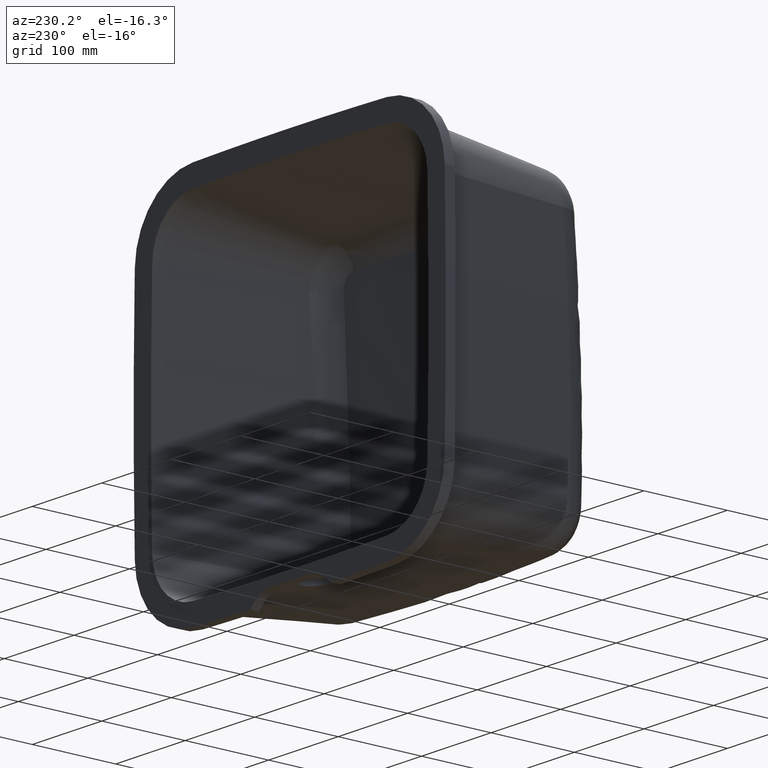
[diagram: clean part render]
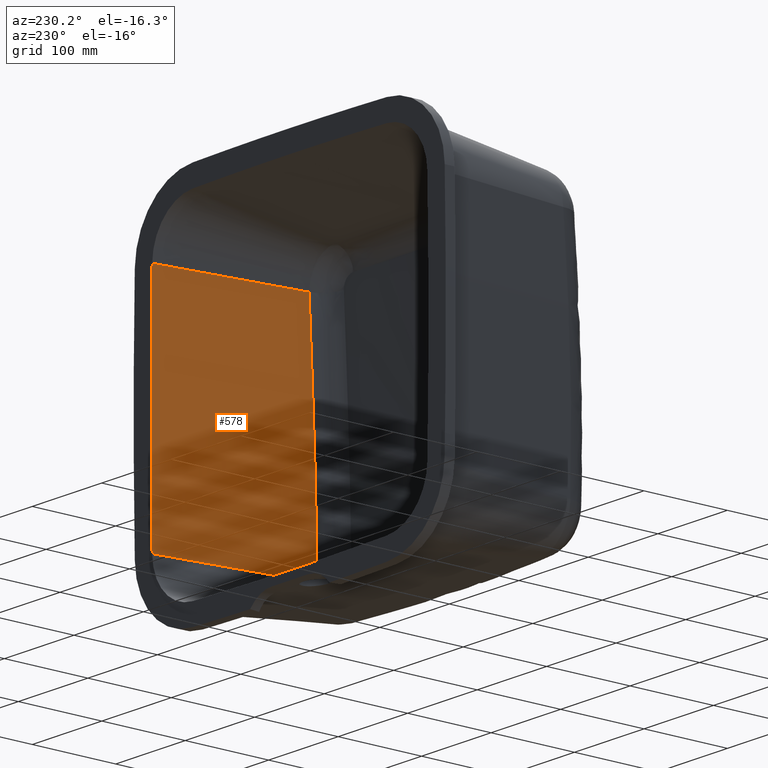
[diagram: same view with one face highlighted and labeled with its STEP entity id]
A machine part, auxiliary view. The second image highlights one B-rep face of the part: STEP entity #578.
In plain terms, the highlighted conical surface has half-angle 7 deg.
Its self-contained STEP definition (entity closure, byte-faithful):
#11 = CARTESIAN_POINT ( 'NONE',  ( -6049.500000000000000, 208.0000000000000000, 1.537349391572821200E-012 ) ) ;
#16 = ORIENTED_EDGE ( 'NONE', *, *, #1391, .F. ) ;
#188 = CARTESIAN_POINT ( 'NONE',  ( 176.9601549894985100, 28.62382987245820900, -80.93341767915032400 ) ) ;
#354 = DIRECTION ( 'NONE',  ( 0.0000000000000000000, 0.0000000000000000000, 1.000000000000000000 ) ) ;
#578 = ADVANCED_FACE ( 'NONE', ( #2968 ), #768, .F. ) ;
#591 = CARTESIAN_POINT ( 'NONE',  ( 197.9472082055906400, 208.0000000000000000, 139.2996076239153100 ) ) ;
#611 = CARTESIAN_POINT ( 'NONE',  ( 177.0011197262908800, 37.36539872812178200, 138.8325717596362400 ) ) ;
#768 = CONICAL_SURFACE ( 'NONE', #3877, 6249.000000000000900, 0.1221730476396033400 ) ;
#770 = ORIENTED_EDGE ( 'NONE', *, *, #3959, .T. ) ;
#875 = CARTESIAN_POINT ( 'NONE',  ( 177.7589308105325800, 30.93419938078199000, 11.63552602703822800 ) ) ;
#953 = VECTOR ( 'NONE', #4032, 1000.000000000000000 ) ;
#1060 = B_SPLINE_CURVE_WITH_KNOTS ( 'NONE', 3,
 ( #3910, #3615, #1198, #3632, #188, #3647, #2977, #875, #2580, #1559, #1543, #3322, #1223, #4011 ),
 .UNSPECIFIED., .F., .F.,
 ( 4, 2, 2, 2, 2, 2, 4 ),
 ( 0.0000000000000000000, 0.03472338904496505300, 0.06944677808993010600, 0.1388935561798601800, 0.1736169452248252400, 0.2083403342697902900, 0.2777871123597204200 ),
 .UNSPECIFIED. ) ;
#1198 = CARTESIAN_POINT ( 'NONE',  ( 176.4158050633988400, 28.65508227981139600, -115.6569085037040000 ) ) ;
#1223 = CARTESIAN_POINT ( 'NONE',  ( 177.3529174423953000, 36.03297514127196200, 115.7156323456456000 ) ) ;
#1238 = ORIENTED_EDGE ( 'NONE', *, *, #1956, .T. ) ;
#1252 = LINE ( 'NONE', #2022, #3015 ) ;
#1391 = EDGE_CURVE ( 'NONE', #3396, #2841, #1252, .T. ) ;
#1401 = LINE ( 'NONE', #4072, #953 ) ;
#1543 = CARTESIAN_POINT ( 'NONE',  ( 177.7546326170227400, 33.00331049146407700, 57.90479959766597800 ) ) ;
#1559 = CARTESIAN_POINT ( 'NONE',  ( 177.7831182706673600, 32.44690270499424400, 46.33976784287452200 ) ) ;
#1622 = CARTESIAN_POINT ( 'NONE',  ( 175.9742611781884400, 29.00022834839990800, -138.8096758490235900 ) ) ;
#1889 = VERTEX_POINT ( 'NONE', #2566 ) ;
#1956 = EDGE_CURVE ( 'NONE', #1889, #4384, #1401, .T. ) ;
#2022 = CARTESIAN_POINT ( 'NONE',  ( 197.9472082055907000, 208.0000000000000000, 139.2996076239153100 ) ) ;
#2109 = AXIS2_PLACEMENT_3D ( 'NONE', #11, #2445, #354 ) ;
#2181 = CARTESIAN_POINT ( 'NONE',  ( -6049.500000000000000, 208.0000000000000000, 1.537349391572821200E-012 ) ) ;
#2445 = DIRECTION ( 'NONE',  ( 0.0000000000000000000, 1.000000000000000000, 0.0000000000000000000 ) ) ;
#2505 = DIRECTION ( 'NONE',  ( 0.0000000000000000000, 1.000000000000000000, 0.0000000000000000000 ) ) ;
#2566 = CARTESIAN_POINT ( 'NONE',  ( 197.9472082055906400, 208.0000000000000000, -139.2996076239152800 ) ) ;
#2580 = CARTESIAN_POINT ( 'NONE',  ( 177.7852691837775300, 31.41234694700897000, 23.20535190594506900 ) ) ;
#2841 = VERTEX_POINT ( 'NONE', #611 ) ;
#2968 = FACE_OUTER_BOUND ( 'NONE', #3567, .T. ) ;
#2977 = CARTESIAN_POINT ( 'NONE',  ( 177.6032213230095400, 29.66306014441239800, -23.07363596067473900 ) ) ;
#3015 = VECTOR ( 'NONE', #3753, 1000.000000000000000 ) ;
#3036 = CIRCLE ( 'NONE', #2109, 6249.000000000000900 ) ;
#3227 = DIRECTION ( 'NONE',  ( 0.0000000000000000000, 0.0000000000000000000, 1.000000000000000000 ) ) ;
#3322 = CARTESIAN_POINT ( 'NONE',  ( 177.5828390867472100, 34.75584807269063200, 92.59508065831460000 ) ) ;
#3396 = VERTEX_POINT ( 'NONE', #591 ) ;
#3555 = ORIENTED_EDGE ( 'NONE', *, *, #4213, .T. ) ;
#3567 = EDGE_LOOP ( 'NONE', ( #16, #770, #1238, #3555 ) ) ;
#3615 = CARTESIAN_POINT ( 'NONE',  ( 176.2061790332400100, 28.78680528757827900, -127.2328309204154200 ) ) ;
#3632 = CARTESIAN_POINT ( 'NONE',  ( 176.7927840543295600, 28.57352255377194400, -92.50720074546022400 ) ) ;
#3647 = CARTESIAN_POINT ( 'NONE',  ( 177.3975937136937900, 29.03670290686672200, -46.21510331131942500 ) ) ;
#3753 = DIRECTION ( 'NONE',  ( -0.1218390605252582200, -0.9925461516413219800, -0.002716650938985553100 ) ) ;
#3877 = AXIS2_PLACEMENT_3D ( 'NONE', #2181, #2505, #3227 ) ;
#3910 = CARTESIAN_POINT ( 'NONE',  ( 175.9742611781884400, 29.00022834839990800, -138.8096758490235900 ) ) ;
#3959 = EDGE_CURVE ( 'NONE', #3396, #1889, #3036, .T. ) ;
#4011 = CARTESIAN_POINT ( 'NONE',  ( 177.0011197262908800, 37.36539872812178200, 138.8325717596362400 ) ) ;
#4032 = DIRECTION ( 'NONE',  ( -0.1218390605252582200, -0.9925461516413219800, 0.002716650938985670200 ) ) ;
#4072 = CARTESIAN_POINT ( 'NONE',  ( 197.9472082055906400, 208.0000000000000000, -139.2996076239152800 ) ) ;
#4213 = EDGE_CURVE ( 'NONE', #4384, #2841, #1060, .T. ) ;
#4384 = VERTEX_POINT ( 'NONE', #1622 ) ;